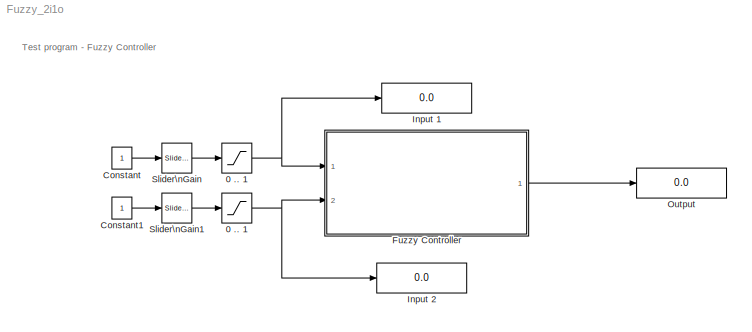
MODEL Fuzzy_2i1o
KIND model
BLOCK [Saturate]  0 .. 1 
  InputPortMap = u0
  LowerLimit = 0
  Ports = [1, 1]
  SID = 1
  UpperLimit = 1
BLOCK [Saturate] 0 .. 1
  InputPortMap = u0
  LowerLimit = 0
  Ports = [1, 1]
  SID = 2
  UpperLimit = 1
BLOCK [Constant] Constant
  SID = 3
BLOCK [Constant] Constant1
  SID = 4
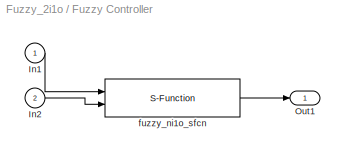
BLOCK [SubSystem] Fuzzy Controller
  Ports = [2, 1]
  RequestExecContextInheritance = off
  SID = 15
  ShowPortLabels = none
  Tag = mcTarget_fuzzy
BLOCK [Inport] Fuzzy Controller/In1
  IconDisplay = Port number
  SID = 15:16
BLOCK [Inport] Fuzzy Controller/In2
  IconDisplay = Port number
  Port = 2
  SID = 15:17
BLOCK [Outport] Fuzzy Controller/Out1
  IconDisplay = Port number
  SID = 15:20
BLOCK [S-Function] Fuzzy Controller/fuzzy_ni1o_sfcn
  EnableBusSupport = off
  FunctionName = fuzzy_ni1o
  Parameters = sampletime, numInputs
  Ports = [2, 1]
  SFcnIsStateOwnerBlock = off
  SFunctionDeploymentMode = off
  SID = 15:19
  Tag = mcTarget_fuzzy
BLOCK [Display] Input 1
  Decimation = 1
  Ports = [1]
  SID = 5
BLOCK [Display] Input 2
  Decimation = 1
  Ports = [1]
  SID = 6
BLOCK [Display] Output
  Decimation = 1
  Ports = [1]
  SID = 7
BLOCK [Reference] Slider\nGain  REF=simulink/Math\nOperations/Slider\nGain
  FunctionWithSeparateData = off
  Ports = [1, 1]
  RTWMemSecDataConstants = Inherit from model
  RTWMemSecDataInternal = Inherit from model
  RTWMemSecDataParameters = Inherit from model
  RTWMemSecFuncExecute = Inherit from model
  RTWMemSecFuncInitTerm = Inherit from model
  SID = 8
  ShowPortLabels = FromPortIcon
  SourceBlock = simulink/Math\nOperations/Slider\nGain
  SourceProductBaseCode = SL
  SourceProductName = Simulink
  SourceType = Slider Gain
  SystemSampleTime = -1
  gain = 0.9
  high = 1
  low = 0
BLOCK [Reference] Slider\nGain1  REF=simulink/Math\nOperations/Slider\nGain
  FunctionWithSeparateData = off
  Ports = [1, 1]
  RTWMemSecDataConstants = Inherit from model
  RTWMemSecDataInternal = Inherit from model
  RTWMemSecDataParameters = Inherit from model
  RTWMemSecFuncExecute = Inherit from model
  RTWMemSecFuncInitTerm = Inherit from model
  SID = 9
  ShowPortLabels = FromPortIcon
  SourceBlock = simulink/Math\nOperations/Slider\nGain
  SourceProductBaseCode = SL
  SourceProductName = Simulink
  SourceType = Slider Gain
  SystemSampleTime = -1
  gain = 0.1
  high = 1
  low = 0
ANNOTATION (root): Test program - Fuzzy Controller
NET  0 .. 1 :1 -> Fuzzy Controller:2, Input 2:1
NET 0 .. 1:1 -> Fuzzy Controller:1, Input 1:1
LINE Constant1:1 -> Slider\nGain1:1
LINE Constant:1 -> Slider\nGain:1
LINE Fuzzy Controller/In1:1 -> Fuzzy Controller/fuzzy_ni1o_sfcn:1
LINE Fuzzy Controller/In2:1 -> Fuzzy Controller/fuzzy_ni1o_sfcn:2
LINE Fuzzy Controller/fuzzy_ni1o_sfcn:1 -> Fuzzy Controller/Out1:1
LINE Fuzzy Controller:1 -> Output:1
LINE Slider\nGain1:1 ->  0 .. 1 :1
LINE Slider\nGain:1 -> 0 .. 1:1
note: NET lines group one-source signal fan-out (src -> all destinations, sorted); 1:1 wires keep LINE
